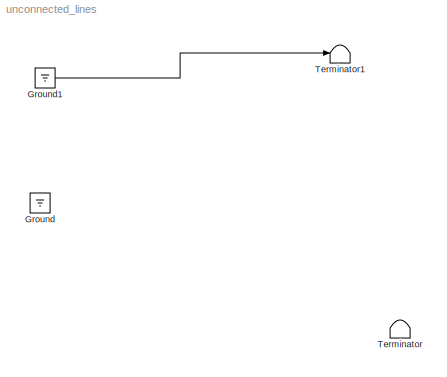
MODEL unconnected_lines
KIND model
BLOCK [Ground] Ground
BLOCK [Ground] Ground1
BLOCK [Terminator] Terminator
BLOCK [Terminator] Terminator1
LINE Ground1:1 -> Terminator1:1
